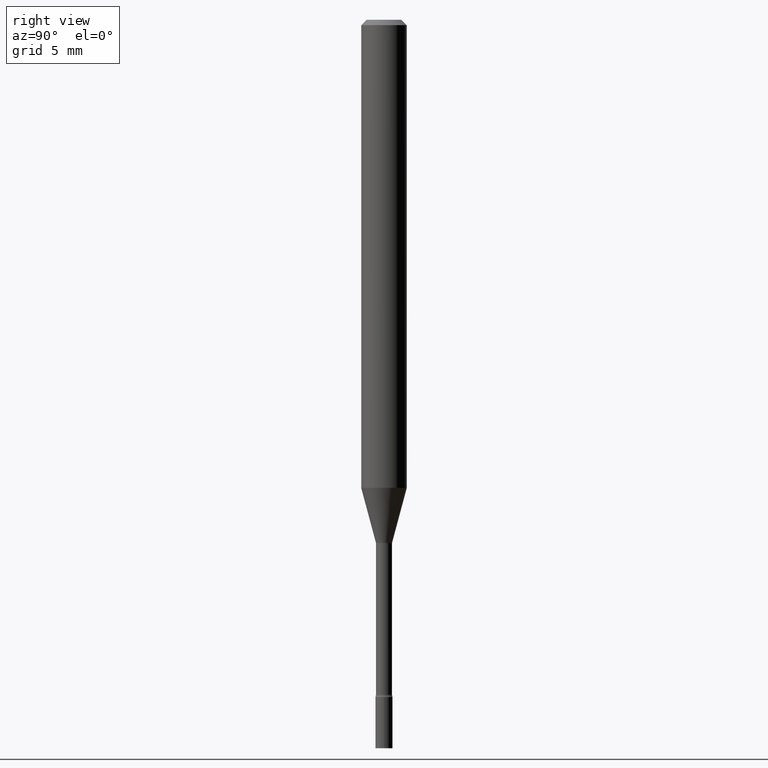
[diagram: clean part render]
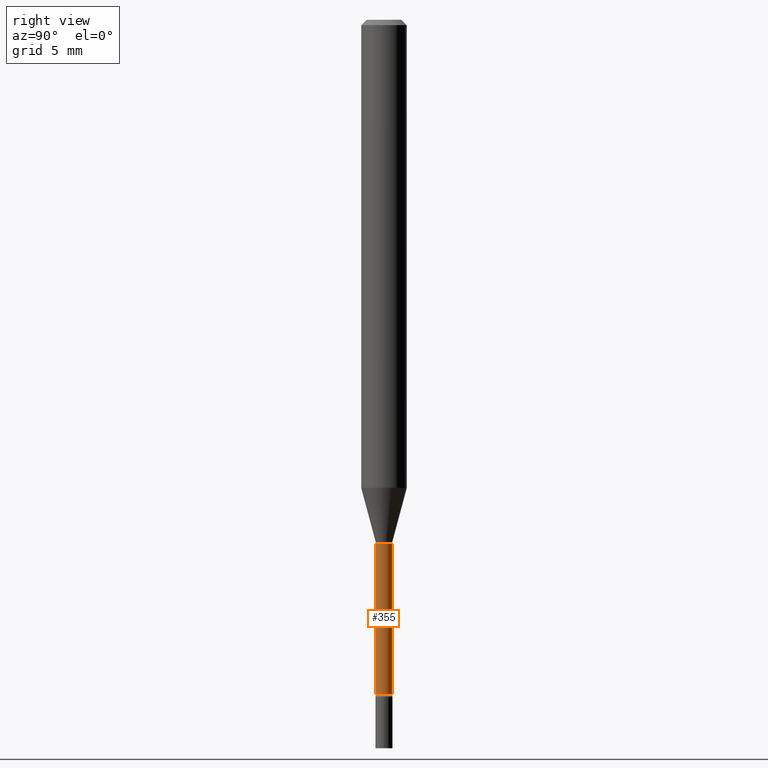
[diagram: same view with one face highlighted and labeled with its STEP entity id]
A machine part, right view. The second image highlights one B-rep face of the part: STEP entity #355.
In plain terms, the highlighted cylindrical surface (edge-blend (fillet) strip) has radius 0.5613 mm, axis along (-0, 0, 1).
Its self-contained STEP definition (entity closure, byte-faithful):
#24 = DIRECTION ( 'NONE',  ( -2.445443858143710310E-29, 3.491517065858421989E-15, 1.000000000000000000 ) ) ;
#36 = ORIENTED_EDGE ( 'NONE', *, *, #106, .T. ) ;
#86 = CIRCLE ( 'NONE', #380, 0.02209999999999999118 ) ;
#105 = VERTEX_POINT ( 'NONE', #123 ) ;
#106 = EDGE_CURVE ( 'NONE', #105, #169, #284, .T. ) ;
#109 = FACE_OUTER_BOUND ( 'NONE', #445, .T. ) ;
#115 = ORIENTED_EDGE ( 'NONE', *, *, #431, .T. ) ;
#123 = CARTESIAN_POINT ( 'NONE',  ( 1.620037437533484049E-16, 0.02209999999999359352, -1.852672283192177582 ) ) ;
#134 = EDGE_CURVE ( 'NONE', #403, #340, #289, .T. ) ;
#136 = DIRECTION ( 'NONE',  ( -2.445443858143710310E-29, 3.491517065858421989E-15, 1.000000000000000000 ) ) ;
#139 = CARTESIAN_POINT ( 'NONE',  ( -1.543234751768666594E-16, -0.02210000000000002587, 7.716252715547121836E-17 ) ) ;
#143 = DIRECTION ( 'NONE',  ( -6.982962677686265922E-15, -1.000000000000000000, 0.000000000000000000 ) ) ;
#148 = CARTESIAN_POINT ( 'NONE',  ( -1.543234751768312592E-16, -0.02210000000000501147, -1.437974787463811133 ) ) ;
#169 = VERTEX_POINT ( 'NONE', #261 ) ;
#173 = CARTESIAN_POINT ( 'NONE',  ( 4.530606056085395644E-29, -6.468636894208376404E-15, -1.852672283192177582 ) ) ;
#180 = ORIENTED_EDGE ( 'NONE', *, *, #134, .F. ) ;
#189 = EDGE_CURVE ( 'NONE', #340, #169, #86, .T. ) ;
#190 = DIRECTION ( 'NONE',  ( -6.982962677686265922E-15, -1.000000000000000000, 3.491517065858421989E-15 ) ) ;
#195 = VECTOR ( 'NONE', #293, 39.37007874015748143 ) ;
#210 = VECTOR ( 'NONE', #501, 39.37007874015748143 ) ;
#212 = CIRCLE ( 'NONE', #477, 0.02210000000000006057 ) ;
#232 = CARTESIAN_POINT ( 'NONE',  ( 0.000000000000000000, 0.000000000000000000, 0.000000000000000000 ) ) ;
#261 = CARTESIAN_POINT ( 'NONE',  ( 1.570299446030275858E-16, 0.02209999999999497436, -1.437974787463811133 ) ) ;
#284 = LINE ( 'NONE', #333, #210 ) ;
#289 = LINE ( 'NONE', #139, #195 ) ;
#293 = DIRECTION ( 'NONE',  ( -2.445443858143710310E-29, 3.491517065858421989E-15, 1.000000000000000000 ) ) ;
#303 = AXIS2_PLACEMENT_3D ( 'NONE', #232, #390, #190 ) ;
#313 = CYLINDRICAL_SURFACE ( 'NONE', #303, 0.02210000000000002587 ) ;
#333 = CARTESIAN_POINT ( 'NONE',  ( 1.570299446029823003E-16, 0.02210000000000002587, -7.716252715547121836E-17 ) ) ;
#340 = VERTEX_POINT ( 'NONE', #148 ) ;
#346 = DIRECTION ( 'NONE',  ( -6.982962677686265922E-15, -1.000000000000000000, 0.000000000000000000 ) ) ;
#355 = ADVANCED_FACE ( 'NONE', ( #109 ), #313, .T. ) ;
#380 = AXIS2_PLACEMENT_3D ( 'NONE', #424, #24, #346 ) ;
#381 = CARTESIAN_POINT ( 'NONE',  ( -1.543234751768215957E-16, -0.02210000000000652762, -1.852672283192177582 ) ) ;
#390 = DIRECTION ( 'NONE',  ( -2.445443858143710310E-29, 3.491517065858421989E-15, 1.000000000000000000 ) ) ;
#403 = VERTEX_POINT ( 'NONE', #381 ) ;
#424 = CARTESIAN_POINT ( 'NONE',  ( 3.516486612168884789E-29, -5.020713510704033557E-15, -1.437974787463811133 ) ) ;
#431 = EDGE_CURVE ( 'NONE', #403, #105, #212, .T. ) ;
#445 = EDGE_LOOP ( 'NONE', ( #115, #36, #492, #180 ) ) ;
#477 = AXIS2_PLACEMENT_3D ( 'NONE', #173, #136, #143 ) ;
#492 = ORIENTED_EDGE ( 'NONE', *, *, #189, .F. ) ;
#501 = DIRECTION ( 'NONE',  ( -2.445443858143710310E-29, 3.491517065858421989E-15, 1.000000000000000000 ) ) ;